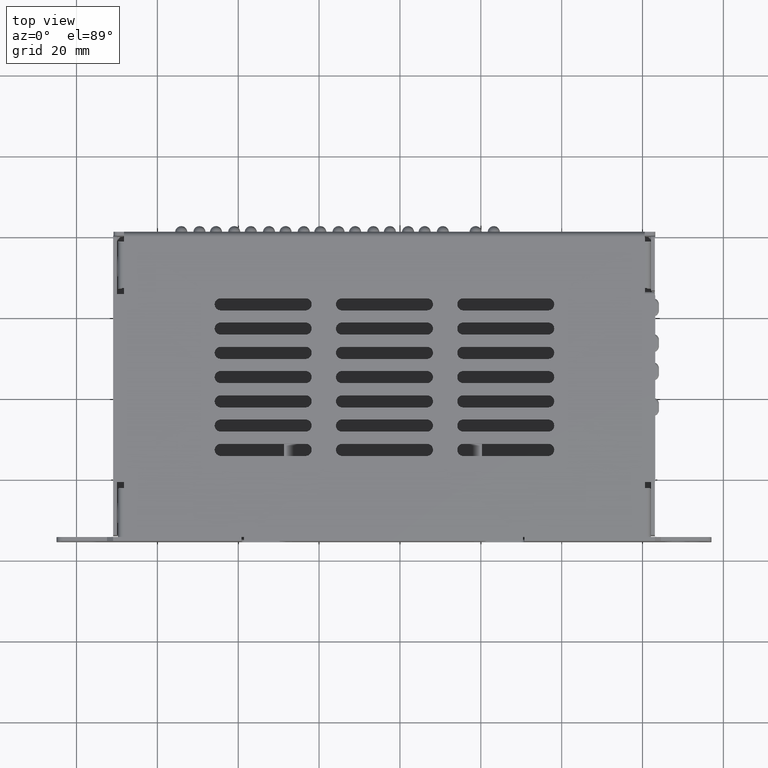
[diagram: clean part render]
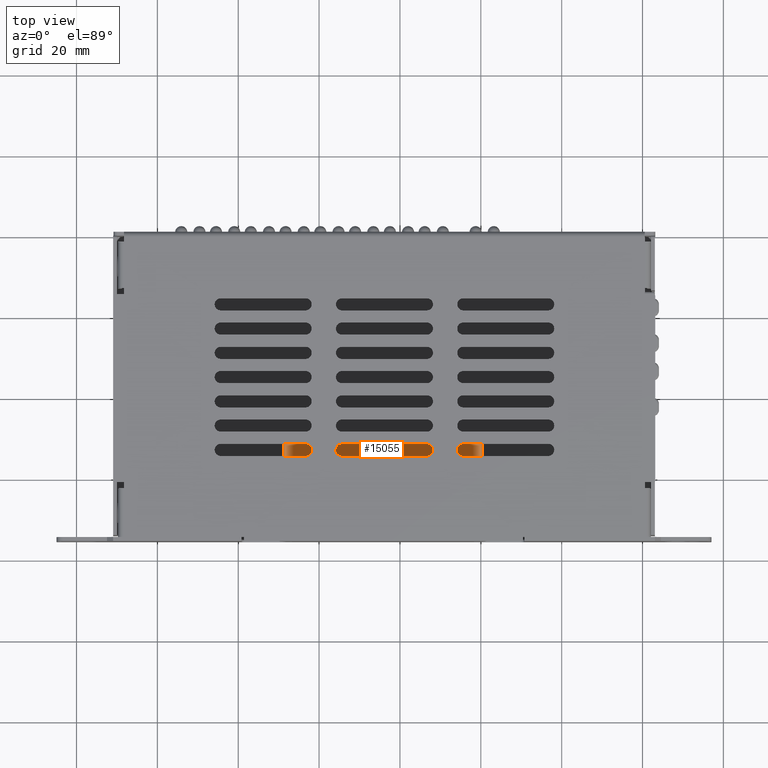
[diagram: same view with one face highlighted and labeled with its STEP entity id]
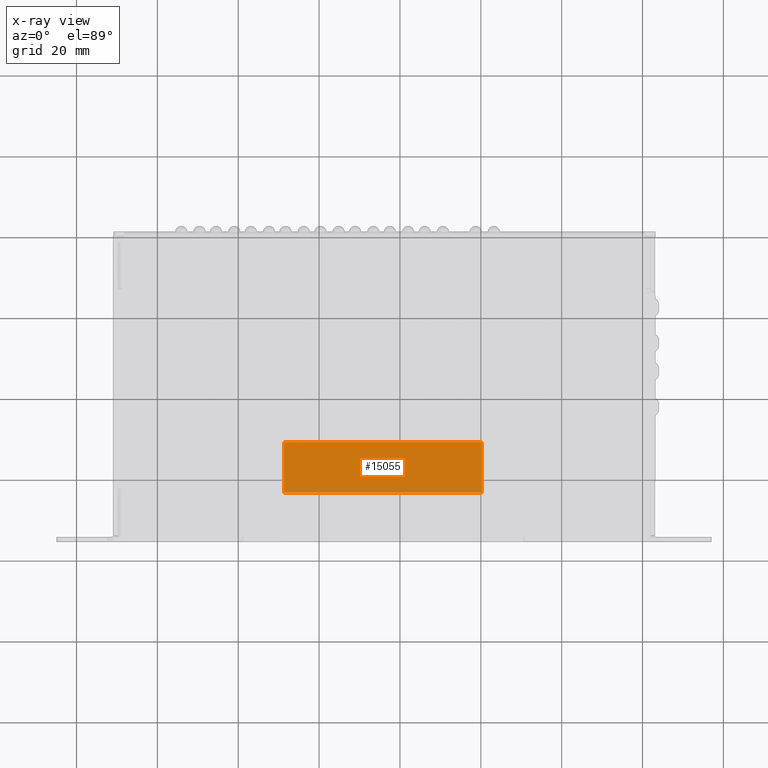
[diagram: x-ray of the same camera — body ghosted, the highlighted face saturated]
A machine part, top view. The second image highlights one B-rep face of the part: STEP entity #15055.
The next image is the same camera in x-ray: the body ghosted, the highlighted face saturated — about 0% of this face is hidden behind the body in this view.
In plain terms, the highlighted planar face has unit normal (0, 0, -1).
Its self-contained STEP definition (entity closure, byte-faithful):
#311 = CARTESIAN_POINT ( 'NONE',  ( 57.98416208646676800, 13.25000000000000000, -17.19999999999999900 ) ) ;
#547 = VECTOR ( 'NONE', #772, 1000.000000000000000 ) ;
#772 = DIRECTION ( 'NONE',  ( -0.0000000000000000000, -0.0000000000000000000, 1.000000000000000000 ) ) ;
#1308 = CARTESIAN_POINT ( 'NONE',  ( 9.015837913533220100, 13.25000000000000000, -17.19999999999999900 ) ) ;
#1314 = CARTESIAN_POINT ( 'NONE',  ( 57.98416208646676800, 13.25000000000000000, -17.19999999999999900 ) ) ;
#1351 = DIRECTION ( 'NONE',  ( 1.000000000000000000, -0.0000000000000000000, -0.0000000000000000000 ) ) ;
#1352 = VECTOR ( 'NONE', #1351, 1000.000000000000000 ) ;
#1353 = CARTESIAN_POINT ( 'NONE',  ( 57.98416208646676800, 13.25000000000000000, -17.19999999999999900 ) ) ;
#1355 = LINE ( 'NONE', #1353, #1352 ) ;
#1416 = CARTESIAN_POINT ( 'NONE',  ( 57.98416208646676800, 13.25000000000000000, -4.700000000000000200 ) ) ;
#1444 = DIRECTION ( 'NONE',  ( 1.000000000000000000, -0.0000000000000000000, -0.0000000000000000000 ) ) ;
#1445 = VECTOR ( 'NONE', #1444, 1000.000000000000000 ) ;
#1446 = CARTESIAN_POINT ( 'NONE',  ( 57.98416208646676800, 13.25000000000000000, -4.700000000000000200 ) ) ;
#1447 = LINE ( 'NONE', #1446, #1445 ) ;
#1453 = CARTESIAN_POINT ( 'NONE',  ( 9.015837913533220100, 13.25000000000000000, -4.700000000000000200 ) ) ;
#1682 = LINE ( 'NONE', #311, #547 ) ;
#1886 = DIRECTION ( 'NONE',  ( -0.0000000000000000000, -0.0000000000000000000, 1.000000000000000000 ) ) ;
#1887 = VECTOR ( 'NONE', #1886, 1000.000000000000000 ) ;
#1888 = CARTESIAN_POINT ( 'NONE',  ( 9.015837913533220100, 13.25000000000000000, -17.19999999999999900 ) ) ;
#1897 = LINE ( 'NONE', #1888, #1887 ) ;
#1977 = DIRECTION ( 'NONE',  ( 0.0000000000000000000, 0.0000000000000000000, -1.000000000000000000 ) ) ;
#1978 = DIRECTION ( 'NONE',  ( 0.0000000000000000000, -1.000000000000000000, -0.0000000000000000000 ) ) ;
#1979 = CARTESIAN_POINT ( 'NONE',  ( 57.98416208646676800, 13.25000000000000000, -17.19999999999999900 ) ) ;
#1980 = AXIS2_PLACEMENT_3D ( 'NONE', #1979, #1978, #1977 ) ;
#1981 = PLANE ( 'NONE',  #1980 ) ;
#1994 = FACE_OUTER_BOUND ( 'NONE', #15004, .T. ) ;
#14687 = VERTEX_POINT ( 'NONE', #1314 ) ;
#14689 = VERTEX_POINT ( 'NONE', #1308 ) ;
#14694 = EDGE_CURVE ( 'NONE', #14689, #14687, #1355, .T. ) ;
#14737 = VERTEX_POINT ( 'NONE', #1416 ) ;
#14740 = VERTEX_POINT ( 'NONE', #1453 ) ;
#14742 = EDGE_CURVE ( 'NONE', #14740, #14737, #1447, .T. ) ;
#15004 = EDGE_LOOP ( 'NONE', ( #15057, #15007, #15056, #15060 ) ) ;
#15005 = EDGE_CURVE ( 'NONE', #14689, #14740, #1897, .T. ) ;
#15007 = ORIENTED_EDGE ( 'NONE', *, *, #15029, .F. ) ;
#15029 = EDGE_CURVE ( 'NONE', #14687, #14737, #1682, .T. ) ;
#15055 = ADVANCED_FACE ( 'NONE', ( #1994 ), #1981, .F. ) ;
#15056 = ORIENTED_EDGE ( 'NONE', *, *, #14694, .F. ) ;
#15057 = ORIENTED_EDGE ( 'NONE', *, *, #14742, .T. ) ;
#15060 = ORIENTED_EDGE ( 'NONE', *, *, #15005, .T. ) ;